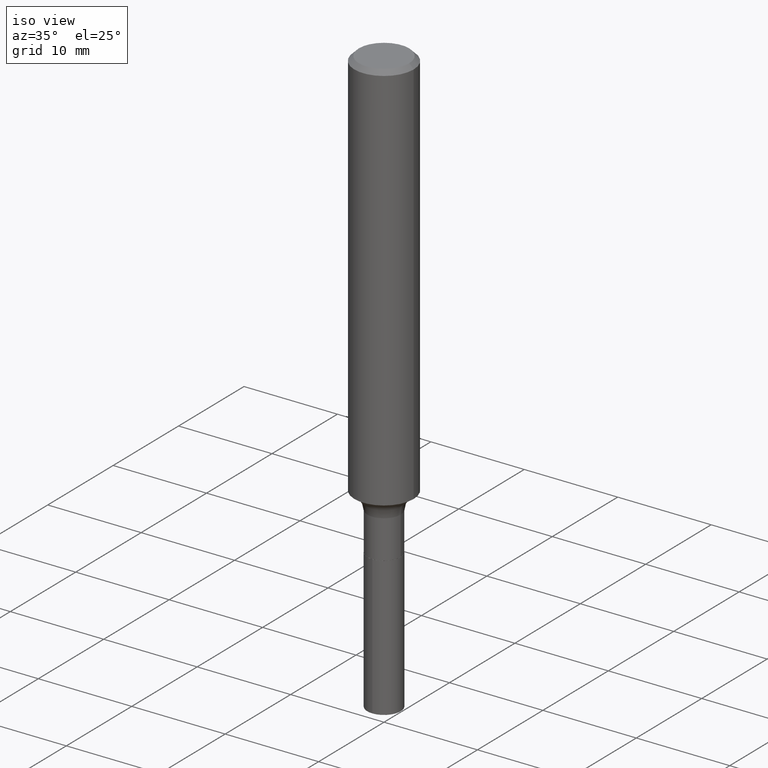
[diagram: clean part render]
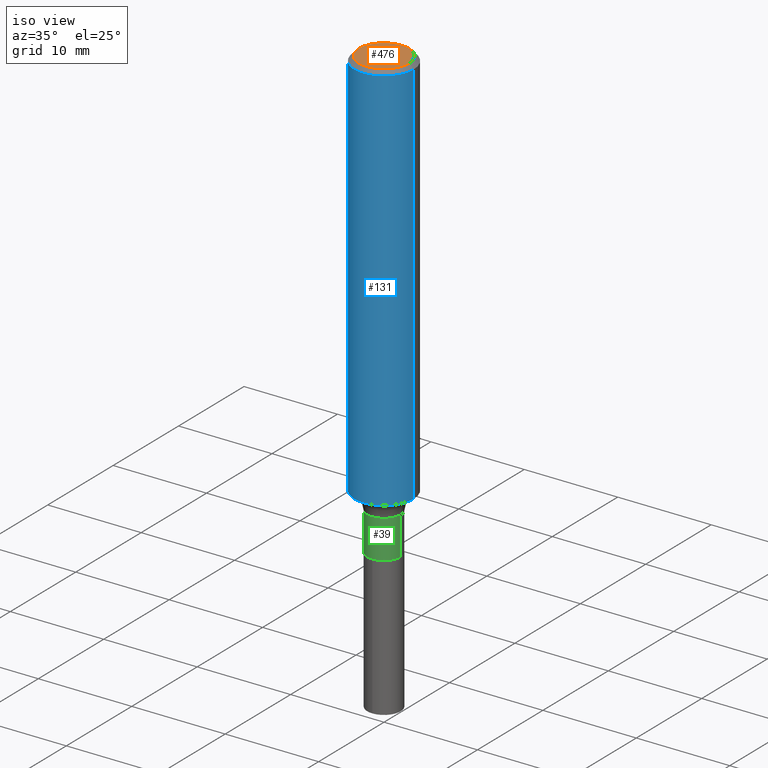
[diagram: same view with three faces highlighted in distinct colors, each labeled with its STEP entity id]
A machine part, iso view with three faces highlighted in distinct colors.
Their STEP definitions:

[orange] entity #476 — the highlighted planar face has unit normal (0, -0, -1).
#5 = EDGE_CURVE ( 'NONE', #480, #422, #19, .T. ) ;
#17 = AXIS2_PLACEMENT_3D ( 'NONE', #288, #364, #491 ) ;
#19 = CIRCLE ( 'NONE', #17, 0.1062499999999999972 ) ;
#55 = CARTESIAN_POINT ( 'NONE',  ( -7.955031918821649840E-47, 1.135767727816383790E-32, 3.252968060235157457E-18 ) ) ;
#82 = FACE_OUTER_BOUND ( 'NONE', #190, .T. ) ;
#119 = DIRECTION ( 'NONE',  ( -2.445468806185136597E-29, 3.491481338843145583E-15, 1.000000000000000000 ) ) ;
#190 = EDGE_LOOP ( 'NONE', ( #317, #456 ) ) ;
#199 = DIRECTION ( 'NONE',  ( 2.438088387897960049E-29, -3.491481338843145188E-15, -1.000000000000000000 ) ) ;
#203 = CARTESIAN_POINT ( 'NONE',  ( 0.1062499999999999972, -8.259777185439879685E-16, 6.505936120475796882E-18 ) ) ;
#219 = AXIS2_PLACEMENT_3D ( 'NONE', #378, #119, #492 ) ;
#230 = EDGE_CURVE ( 'NONE', #422, #480, #376, .T. ) ;
#238 = PLANE ( 'NONE',  #424 ) ;
#288 = CARTESIAN_POINT ( 'NONE',  ( -1.591006383764329968E-46, 2.271535455632767580E-32, 6.505936120470314915E-18 ) ) ;
#317 = ORIENTED_EDGE ( 'NONE', *, *, #230, .T. ) ;
#364 = DIRECTION ( 'NONE',  ( -2.445468806185136597E-29, 3.491481338843145583E-15, 1.000000000000000000 ) ) ;
#376 = CIRCLE ( 'NONE', #219, 0.1062499999999999972 ) ;
#378 = CARTESIAN_POINT ( 'NONE',  ( -1.591006383764329968E-46, 2.271535455632767580E-32, 6.505936120470314915E-18 ) ) ;
#388 = DIRECTION ( 'NONE',  ( -1.000000000000000000, 6.982962677686265922E-15, -4.876176775795935793E-29 ) ) ;
#395 = CARTESIAN_POINT ( 'NONE',  ( -0.1062499999999999972, 7.746724220558198188E-16, 6.505936120465012444E-18 ) ) ;
#422 = VERTEX_POINT ( 'NONE', #395 ) ;
#424 = AXIS2_PLACEMENT_3D ( 'NONE', #55, #199, #388 ) ;
#456 = ORIENTED_EDGE ( 'NONE', *, *, #5, .T. ) ;
#476 = ADVANCED_FACE ( 'NONE', ( #82 ), #238, .F. ) ;
#480 = VERTEX_POINT ( 'NONE', #203 ) ;
#491 = DIRECTION ( 'NONE',  ( 1.000000000000000000, -6.982962677686266711E-15, 4.875930095424100059E-29 ) ) ;
#492 = DIRECTION ( 'NONE',  ( 1.000000000000000000, -6.982962677686266711E-15, 4.875930095424100059E-29 ) ) ;

[blue] entity #131 — the highlighted cylindrical surface (edge-blend (fillet) strip) has radius 3.175 mm, axis along (-0, 0, 1).
#27 = FACE_OUTER_BOUND ( 'NONE', #310, .T. ) ;
#33 = DIRECTION ( 'NONE',  ( -2.445468806185136877E-29, 3.491481338843145188E-15, 1.000000000000000000 ) ) ;
#46 = CARTESIAN_POINT ( 'NONE',  ( 0.1250000000000001110, -8.728703347107841277E-16, 6.095220969744924646E-30 ) ) ;
#47 = ORIENTED_EDGE ( 'NONE', *, *, #250, .T. ) ;
#54 = VERTEX_POINT ( 'NONE', #366 ) ;
#75 = AXIS2_PLACEMENT_3D ( 'NONE', #212, #106, #330 ) ;
#84 = DIRECTION ( 'NONE',  ( -2.445468806185136597E-29, 3.491481338843145583E-15, 1.000000000000000000 ) ) ;
#93 = EDGE_CURVE ( 'NONE', #54, #170, #225, .T. ) ;
#97 = AXIS2_PLACEMENT_3D ( 'NONE', #318, #84, #428 ) ;
#106 = DIRECTION ( 'NONE',  ( -2.445468806185136597E-29, 3.491481338843145583E-15, 1.000000000000000000 ) ) ;
#120 = VECTOR ( 'NONE', #158, 39.37007874015748143 ) ;
#131 = ADVANCED_FACE ( 'NONE', ( #27 ), #173, .T. ) ;
#139 = CIRCLE ( 'NONE', #97, 0.1250000000000001943 ) ;
#140 = DIRECTION ( 'NONE',  ( -2.445468806185136597E-29, 3.491481338843145583E-15, 1.000000000000000000 ) ) ;
#149 = EDGE_CURVE ( 'NONE', #427, #54, #370, .T. ) ;
#155 = VECTOR ( 'NONE', #33, 39.37007874015748143 ) ;
#158 = DIRECTION ( 'NONE',  ( -2.445468806185136877E-29, 3.491481338843145188E-15, 1.000000000000000000 ) ) ;
#165 = ORIENTED_EDGE ( 'NONE', *, *, #357, .T. ) ;
#170 = VERTEX_POINT ( 'NONE', #266 ) ;
#171 = VERTEX_POINT ( 'NONE', #272 ) ;
#173 = CYLINDRICAL_SURFACE ( 'NONE', #265, 0.1250000000000001110 ) ;
#212 = CARTESIAN_POINT ( 'NONE',  ( 4.585254011597163874E-31, -6.546527510330944066E-17, -0.01875000000000013461 ) ) ;
#223 = CARTESIAN_POINT ( 'NONE',  ( -0.1250000000000001110, 8.881784197001260212E-16, -6.148668862818637832E-30 ) ) ;
#225 = CIRCLE ( 'NONE', #75, 0.1250000000000000000 ) ;
#250 = EDGE_CURVE ( 'NONE', #171, #170, #269, .T. ) ;
#265 = AXIS2_PLACEMENT_3D ( 'NONE', #483, #140, #339 ) ;
#266 = CARTESIAN_POINT ( 'NONE',  ( 0.1250000000000000000, -9.383356098140928781E-16, -0.01875000000000013461 ) ) ;
#269 = LINE ( 'NONE', #46, #120 ) ;
#272 = CARTESIAN_POINT ( 'NONE',  ( 0.1250000000000003053, -6.649391325372587997E-15, -1.654461367556892881 ) ) ;
#310 = EDGE_LOOP ( 'NONE', ( #345, #165, #47, #400 ) ) ;
#318 = CARTESIAN_POINT ( 'NONE',  ( 4.045933665398783459E-29, -5.776520990661802291E-15, -1.654461367556892881 ) ) ;
#330 = DIRECTION ( 'NONE',  ( 1.000000000000000000, -6.982962677686266711E-15, 0.000000000000000000 ) ) ;
#339 = DIRECTION ( 'NONE',  ( 1.000000000000000000, -6.982962677686266711E-15, 4.876176775795935232E-29 ) ) ;
#345 = ORIENTED_EDGE ( 'NONE', *, *, #149, .F. ) ;
#357 = EDGE_CURVE ( 'NONE', #427, #171, #139, .T. ) ;
#366 = CARTESIAN_POINT ( 'NONE',  ( -0.1250000000000000000, -2.032814713182428908E-15, -0.01875000000000013461 ) ) ;
#370 = LINE ( 'NONE', #223, #155 ) ;
#390 = CARTESIAN_POINT ( 'NONE',  ( -0.1250000000000003053, -4.888342570961675481E-15, -1.654461367556892881 ) ) ;
#400 = ORIENTED_EDGE ( 'NONE', *, *, #93, .F. ) ;
#427 = VERTEX_POINT ( 'NONE', #390 ) ;
#428 = DIRECTION ( 'NONE',  ( 1.000000000000000000, -6.982962677686267499E-15, 0.000000000000000000 ) ) ;
#483 = CARTESIAN_POINT ( 'NONE',  ( 0.000000000000000000, 0.000000000000000000, 0.000000000000000000 ) ) ;

[green] entity #39 — the highlighted cylindrical surface (edge-blend (fillet) strip) has radius 1.7856 mm, axis along (-0, 0, 1).
#1 = ORIENTED_EDGE ( 'NONE', *, *, #132, .T. ) ;
#11 = EDGE_CURVE ( 'NONE', #13, #136, #66, .T. ) ;
#12 = CARTESIAN_POINT ( 'NONE',  ( -0.07030000000000000138, -5.818323939397324002E-15, -1.890100000000000335 ) ) ;
#13 = VERTEX_POINT ( 'NONE', #65 ) ;
#30 = AXIS2_PLACEMENT_3D ( 'NONE', #178, #489, #147 ) ;
#39 = ADVANCED_FACE ( 'NONE', ( #293 ), #253, .T. ) ;
#40 = DIRECTION ( 'NONE',  ( 1.000000000000000000, -6.982962677686266711E-15, 0.000000000000000000 ) ) ;
#45 = CARTESIAN_POINT ( 'NONE',  ( 4.227971019013483248E-29, -6.036422086725915643E-15, -1.728900000000000325 ) ) ;
#50 = VECTOR ( 'NONE', #208, 39.37007874015748143 ) ;
#51 = LINE ( 'NONE', #240, #50 ) ;
#65 = CARTESIAN_POINT ( 'NONE',  ( 0.07030000000000000138, -7.090151154788775429E-15, -1.890100000000000335 ) ) ;
#66 = LINE ( 'NONE', #335, #356 ) ;
#67 = CIRCLE ( 'NONE', #408, 0.07029999999999998750 ) ;
#73 = DIRECTION ( 'NONE',  ( -2.445468806185136597E-29, 3.491481338843145583E-15, 1.000000000000000000 ) ) ;
#104 = DIRECTION ( 'NONE',  ( -2.445468806185136597E-29, 3.491481338843145583E-15, 1.000000000000000000 ) ) ;
#132 = EDGE_CURVE ( 'NONE', #315, #13, #234, .T. ) ;
#136 = VERTEX_POINT ( 'NONE', #221 ) ;
#147 = DIRECTION ( 'NONE',  ( 1.000000000000000000, -6.982962677686266711E-15, 4.876176775795935793E-29 ) ) ;
#178 = CARTESIAN_POINT ( 'NONE',  ( 0.000000000000000000, 0.000000000000000000, 0.000000000000000000 ) ) ;
#187 = ORIENTED_EDGE ( 'NONE', *, *, #460, .F. ) ;
#197 = ORIENTED_EDGE ( 'NONE', *, *, #236, .F. ) ;
#208 = DIRECTION ( 'NONE',  ( -2.445468806185136877E-29, 3.491481338843145188E-15, 1.000000000000000000 ) ) ;
#221 = CARTESIAN_POINT ( 'NONE',  ( 0.07029999999999998750, -6.527324362967259801E-15, -1.728900000000000325 ) ) ;
#234 = CIRCLE ( 'NONE', #382, 0.07030000000000000138 ) ;
#235 = CARTESIAN_POINT ( 'NONE',  ( -0.07029999999999998750, -5.818323939397324002E-15, -1.728900000000000325 ) ) ;
#236 = EDGE_CURVE ( 'NONE', #280, #136, #67, .T. ) ;
#240 = CARTESIAN_POINT ( 'NONE',  ( -0.07029999999999998750, 4.995115432393503418E-16, -3.458011368449198169E-30 ) ) ;
#253 = CYLINDRICAL_SURFACE ( 'NONE', #30, 0.07029999999999998750 ) ;
#256 = DIRECTION ( 'NONE',  ( -2.445468806185136877E-29, 3.491481338843145188E-15, 1.000000000000000000 ) ) ;
#278 = ORIENTED_EDGE ( 'NONE', *, *, #11, .T. ) ;
#280 = VERTEX_POINT ( 'NONE', #235 ) ;
#291 = CARTESIAN_POINT ( 'NONE',  ( 4.622180590570527221E-29, -6.599248878547431270E-15, -1.890100000000000335 ) ) ;
#293 = FACE_OUTER_BOUND ( 'NONE', #462, .T. ) ;
#315 = VERTEX_POINT ( 'NONE', #12 ) ;
#335 = CARTESIAN_POINT ( 'NONE',  ( 0.07029999999999998750, -4.909022762413444543E-16, 3.427952273384542436E-30 ) ) ;
#356 = VECTOR ( 'NONE', #256, 39.37007874015748143 ) ;
#382 = AXIS2_PLACEMENT_3D ( 'NONE', #291, #104, #411 ) ;
#408 = AXIS2_PLACEMENT_3D ( 'NONE', #45, #73, #40 ) ;
#411 = DIRECTION ( 'NONE',  ( 1.000000000000000000, -6.982962677686265133E-15, 0.000000000000000000 ) ) ;
#460 = EDGE_CURVE ( 'NONE', #315, #280, #51, .T. ) ;
#462 = EDGE_LOOP ( 'NONE', ( #187, #1, #278, #197 ) ) ;
#489 = DIRECTION ( 'NONE',  ( -2.445468806185136597E-29, 3.491481338843145583E-15, 1.000000000000000000 ) ) ;